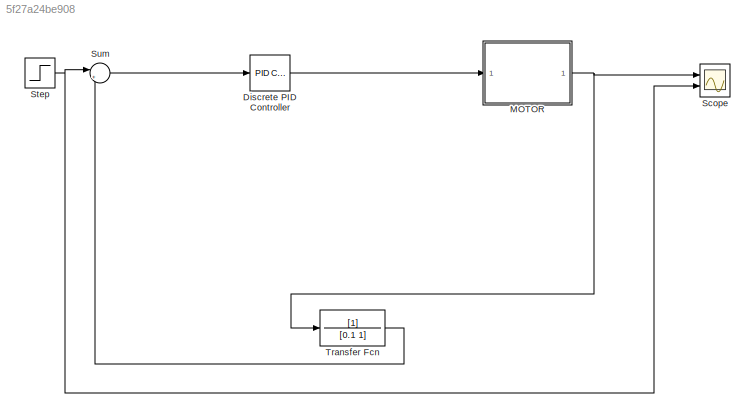
MODEL slx_5f27a24be908
KIND model
CONFIG AbsTol = auto
CONFIG EnableMultiTasking = off
CONFIG FixedStep = auto
CONFIG MaxStep = auto
CONFIG MinStep = auto
CONFIG RelTol = 1e-3
CONFIG SampleTimeConstraint = Unconstrained
CONFIG Solver = VariableStepAuto
CONFIG SolverName = VariableStepAuto
CONFIG StartTime = 0.0
CONFIG StopTime = 3.0
BLOCK [Reference] Discrete PID Controller  REF=simulink/Continuous/PID Controller
  Ports = [1, 1]
  SourceBlock = simulink/Continuous/PID Controller
  SourceProductBaseCode = SL
  SourceProductName = Simulink
  SourceType = PID 1dof
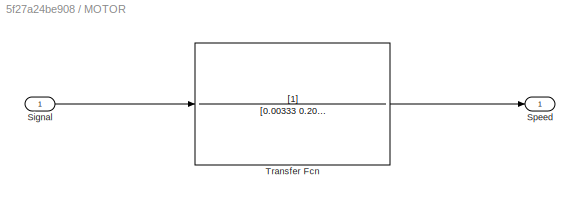
BLOCK [SubSystem] MOTOR
  Ports = [1, 1]
  RequestExecContextInheritance = off
BLOCK [Inport] MOTOR/Signal
  IconDisplay = Port number
BLOCK [Outport] MOTOR/Speed
  IconDisplay = Port number
  VectorParamsAs1DForOutWhenUnconnected = off
BLOCK [TransferFcn] MOTOR/Transfer Fcn
  Denominator = [0.00333 0.201 1]
BLOCK [Scope] Scope
  Floating = off
  NumInputPorts = 2
  Ports = [2]
  ScopeSpecificationString = Simulink.scopes.TimeScopeBlockCfg('CurrentConfiguration', extmgr.ConfigurationSet(extmgr.Configuration('Core','General UI',true),extmgr.Configuration('Core','Source UI',true),extmgr.Configuration('Sources','WiredSimulink',true),extmgr.Configuration('Visuals','Time Domain',true,'SerializedDisplays',{struct('MinYLimReal','-0.19688','MaxYLimReal','1.44331','YLabelReal','','MinYLimMag','0.00000','MaxY...<+1844ch>
BLOCK [Step] Step
  SampleTime = 0
BLOCK [Sum] Sum
  IconShape = round
  InputSameDT = off
  Inputs = |+-
  OutDataTypeStr = Inherit: Inherit via internal rule
  Ports = [2, 1]
  SaturateOnIntegerOverflow = off
BLOCK [TransferFcn] Transfer Fcn
  Denominator = [0.1 1]
LINE Discrete PID Controller:1 -> MOTOR:1
LINE MOTOR/Signal:1 -> MOTOR/Transfer Fcn:1
LINE MOTOR/Transfer Fcn:1 -> MOTOR/Speed:1
NET MOTOR:1 -> Scope:1, Transfer Fcn:1
NET Step:1 -> Scope:2, Sum:1
LINE Sum:1 -> Discrete PID Controller:1
LINE Transfer Fcn:1 -> Sum:2
note: NET lines group one-source signal fan-out (src -> all destinations, sorted); 1:1 wires keep LINE
